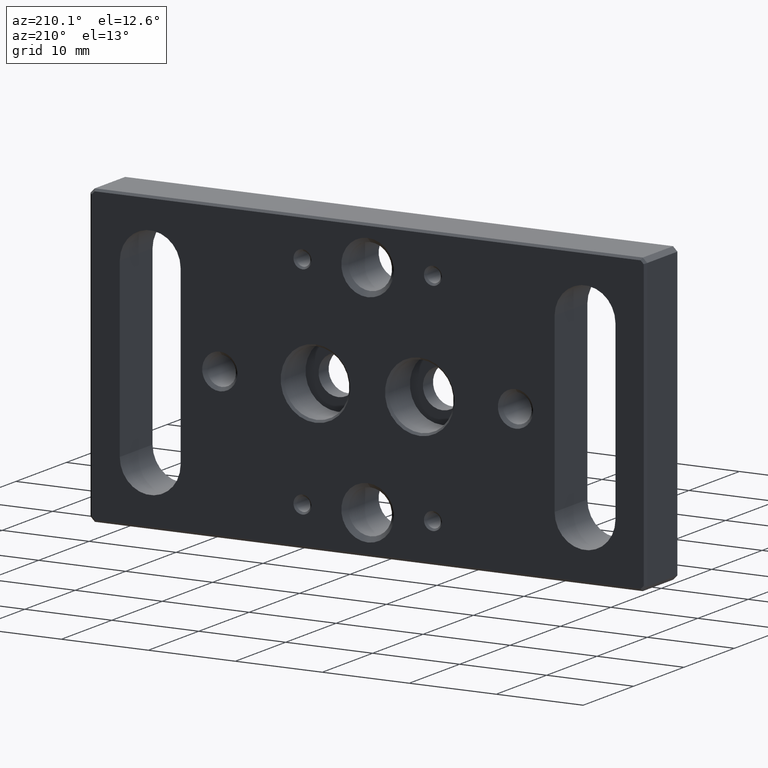
[diagram: clean part render]
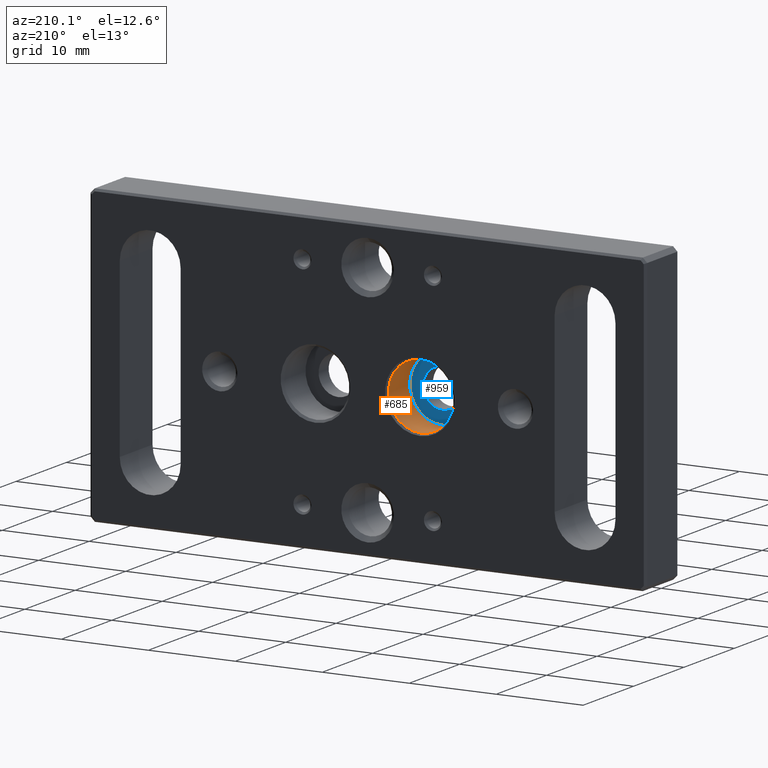
[diagram: same view with the hole feature highlighted: cylindrical wall and planar end face, labeled with their STEP entity ids]
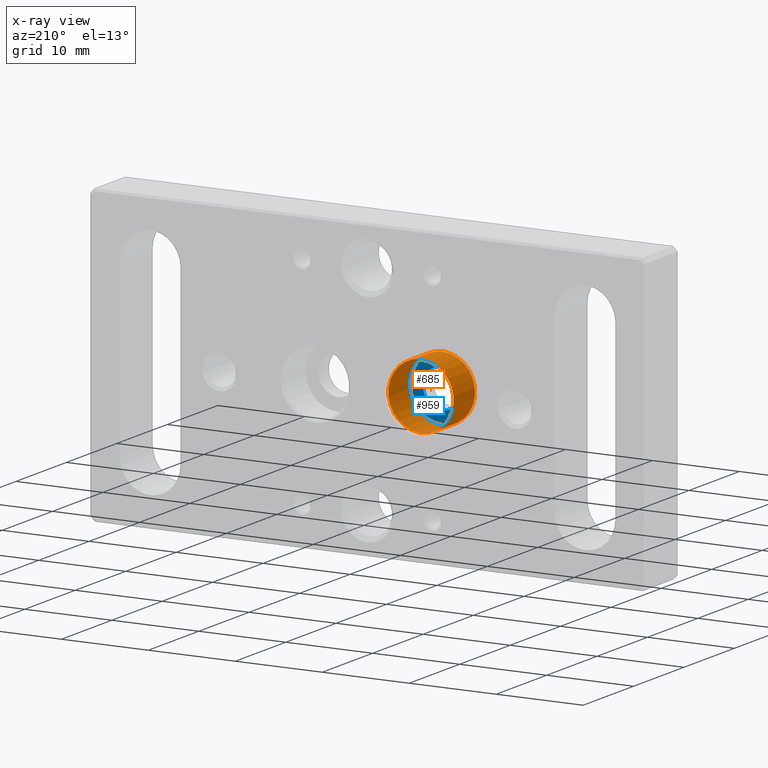
[diagram: x-ray of the same camera — body ghosted, the hole faces saturated]
A machine part, auxiliary view. The highlighted faces form one hole feature of diameter 7.5 mm: the cylindrical wall (entity #685, orange) and its adjacent planar end face (entity #959, blue) — they share a circular edge in the B-rep.
The next image is the same camera in x-ray (body ghosted, the hole faces saturated) — the bore reads through the body.
Wall:
#85 = DIRECTION ( 'NONE',  ( -0.000000000000000000, 1.000000000000000000, -0.000000000000000000 ) ) ;
#149 = AXIS2_PLACEMENT_3D ( 'NONE', #705, #85, #325 ) ;
#173 = EDGE_CURVE ( 'NONE', #1337, #1337, #240, .T. ) ;
#204 = FACE_OUTER_BOUND ( 'NONE', #1592, .T. ) ;
#236 = DIRECTION ( 'NONE',  ( 0.000000000000000000, 1.000000000000000000, 0.000000000000000000 ) ) ;
#240 = CIRCLE ( 'NONE', #785, 3.750000000000012879 ) ;
#325 = DIRECTION ( 'NONE',  ( 0.000000000000000000, 0.000000000000000000, 1.000000000000000000 ) ) ;
#338 = CARTESIAN_POINT ( 'NONE',  ( -5.999999999999999112, 2.000000000000000000, 3.750000000000012879 ) ) ;
#366 = EDGE_CURVE ( 'NONE', #573, #573, #1387, .T. ) ;
#411 = ORIENTED_EDGE ( 'NONE', *, *, #173, .F. ) ;
#497 = DIRECTION ( 'NONE',  ( 0.000000000000000000, 0.000000000000000000, 1.000000000000000000 ) ) ;
#535 = ORIENTED_EDGE ( 'NONE', *, *, #366, .T. ) ;
#573 = VERTEX_POINT ( 'NONE', #1221 ) ;
#685 = ADVANCED_FACE ( 'NONE', ( #204, #1223 ), #1101, .F. ) ;
#705 = CARTESIAN_POINT ( 'NONE',  ( -5.999999999999999112, 6.500000000000000000, 0.000000000000000000 ) ) ;
#748 = AXIS2_PLACEMENT_3D ( 'NONE', #1233, #236, #497 ) ;
#785 = AXIS2_PLACEMENT_3D ( 'NONE', #1611, #851, #1512 ) ;
#851 = DIRECTION ( 'NONE',  ( -0.000000000000000000, 1.000000000000000000, -0.000000000000000000 ) ) ;
#1012 = EDGE_LOOP ( 'NONE', ( #411 ) ) ;
#1101 = CYLINDRICAL_SURFACE ( 'NONE', #149, 3.750000000000013323 ) ;
#1221 = CARTESIAN_POINT ( 'NONE',  ( -5.999999999999999112, 6.249999999999989342, 3.750000000000013323 ) ) ;
#1223 = FACE_OUTER_BOUND ( 'NONE', #1012, .T. ) ;
#1233 = CARTESIAN_POINT ( 'NONE',  ( -5.999999999999999112, 6.249999999999989342, 0.000000000000000000 ) ) ;
#1337 = VERTEX_POINT ( 'NONE', #338 ) ;
#1387 = CIRCLE ( 'NONE', #748, 3.750000000000013323 ) ;
#1512 = DIRECTION ( 'NONE',  ( 0.000000000000000000, 0.000000000000000000, 1.000000000000000000 ) ) ;
#1592 = EDGE_LOOP ( 'NONE', ( #535 ) ) ;
#1611 = CARTESIAN_POINT ( 'NONE',  ( -5.999999999999999112, 2.000000000000000000, 0.000000000000000000 ) ) ;
End face:
#173 = EDGE_CURVE ( 'NONE', #1337, #1337, #240, .T. ) ;
#223 = VERTEX_POINT ( 'NONE', #492 ) ;
#240 = CIRCLE ( 'NONE', #785, 3.750000000000012879 ) ;
#273 = PLANE ( 'NONE',  #1068 ) ;
#338 = CARTESIAN_POINT ( 'NONE',  ( -5.999999999999999112, 2.000000000000000000, 3.750000000000012879 ) ) ;
#418 = CARTESIAN_POINT ( 'NONE',  ( -5.999999999999999112, 2.000000000000000000, 0.000000000000000000 ) ) ;
#492 = CARTESIAN_POINT ( 'NONE',  ( -5.999999999999999112, 2.000000000000000000, 2.250000000000012434 ) ) ;
#534 = EDGE_LOOP ( 'NONE', ( #873 ) ) ;
#661 = CARTESIAN_POINT ( 'NONE',  ( -3.749999999999986677, 2.000000000000000000, 0.000000000000000000 ) ) ;
#785 = AXIS2_PLACEMENT_3D ( 'NONE', #1611, #851, #1512 ) ;
#841 = DIRECTION ( 'NONE',  ( 0.000000000000000000, 0.000000000000000000, 1.000000000000000000 ) ) ;
#851 = DIRECTION ( 'NONE',  ( -0.000000000000000000, 1.000000000000000000, -0.000000000000000000 ) ) ;
#873 = ORIENTED_EDGE ( 'NONE', *, *, #1239, .F. ) ;
#920 = DIRECTION ( 'NONE',  ( -0.000000000000000000, 1.000000000000000000, -0.000000000000000000 ) ) ;
#959 = ADVANCED_FACE ( 'NONE', ( #1038, #1407 ), #273, .F. ) ;
#985 = CIRCLE ( 'NONE', #1039, 2.250000000000012434 ) ;
#1038 = FACE_BOUND ( 'NONE', #534, .T. ) ;
#1039 = AXIS2_PLACEMENT_3D ( 'NONE', #418, #920, #841 ) ;
#1068 = AXIS2_PLACEMENT_3D ( 'NONE', #661, #1544, #1554 ) ;
#1130 = EDGE_LOOP ( 'NONE', ( #1515 ) ) ;
#1239 = EDGE_CURVE ( 'NONE', #223, #223, #985, .T. ) ;
#1337 = VERTEX_POINT ( 'NONE', #338 ) ;
#1407 = FACE_OUTER_BOUND ( 'NONE', #1130, .T. ) ;
#1512 = DIRECTION ( 'NONE',  ( 0.000000000000000000, 0.000000000000000000, 1.000000000000000000 ) ) ;
#1515 = ORIENTED_EDGE ( 'NONE', *, *, #173, .T. ) ;
#1544 = DIRECTION ( 'NONE',  ( 0.000000000000000000, -1.000000000000000000, 0.000000000000000000 ) ) ;
#1554 = DIRECTION ( 'NONE',  ( 0.000000000000000000, -0.000000000000000000, -1.000000000000000000 ) ) ;
#1611 = CARTESIAN_POINT ( 'NONE',  ( -5.999999999999999112, 2.000000000000000000, 0.000000000000000000 ) ) ;